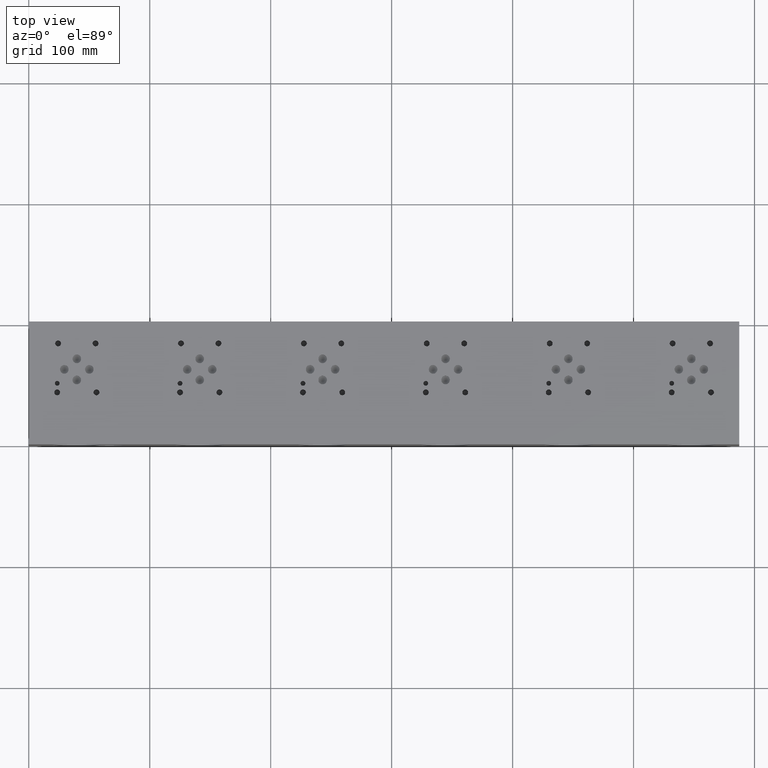
[diagram: clean part render]
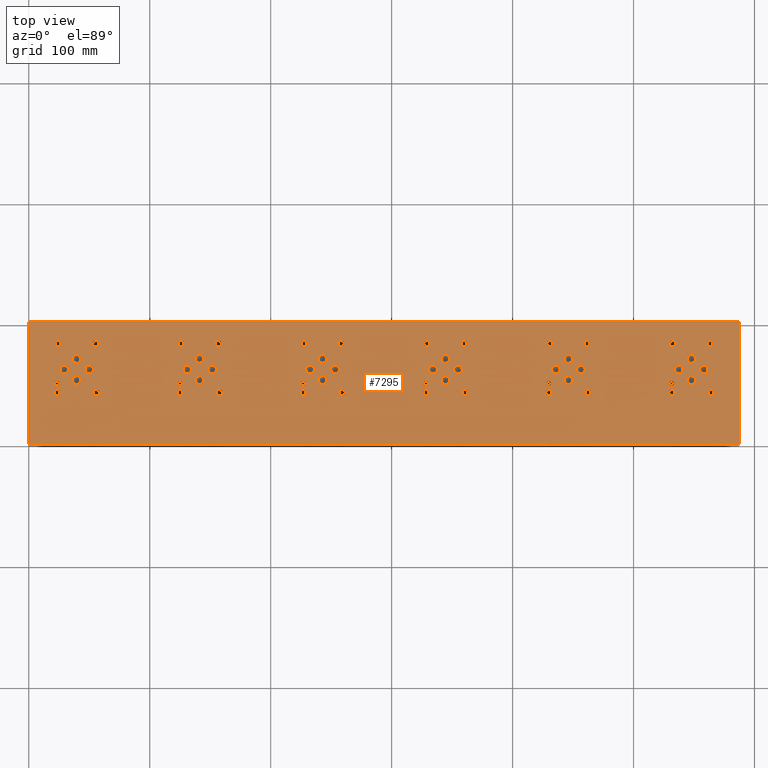
[diagram: same view with one face highlighted and labeled with its STEP entity id]
A machine part, top view. The second image highlights one B-rep face of the part: STEP entity #7295.
In plain terms, the highlighted planar face has unit normal (0, 0, 1).
Its self-contained STEP definition (entity closure, byte-faithful):
#564=CARTESIAN_POINT('',(534.64460000000008,83.337400000000002,101.59999999999999));
#565=VERTEX_POINT('',#564);
#566=CARTESIAN_POINT('',(532.23159999999996,83.337400000000002,101.59999999999999));
#567=DIRECTION('',(0.0,0.0,-1.0));
#568=DIRECTION('',(1.0,0.0,0.0));
#569=AXIS2_PLACEMENT_3D('',#566,#567,#568);
#570=CIRCLE('',#569,2.413000000000025);
#571=EDGE_CURVE('',#565,#565,#570,.T.);
#641=CARTESIAN_POINT('',(565.60720000000015,83.337400000000002,101.59999999999999));
#642=VERTEX_POINT('',#641);
#643=CARTESIAN_POINT('',(563.19420000000014,83.337400000000002,101.59999999999999));
#644=DIRECTION('',(0.0,0.0,-1.0));
#645=DIRECTION('',(1.0,0.0,0.0));
#646=AXIS2_PLACEMENT_3D('',#643,#644,#645);
#647=CIRCLE('',#646,2.413000000000025);
#648=EDGE_CURVE('',#642,#642,#647,.T.);
#718=CARTESIAN_POINT('',(566.39459999999997,42.849800000000002,101.59999999999999));
#719=VERTEX_POINT('',#718);
#720=CARTESIAN_POINT('',(563.98159999999996,42.849800000000002,101.59999999999999));
#721=DIRECTION('',(0.0,0.0,-1.0));
#722=DIRECTION('',(1.0,0.0,0.0));
#723=AXIS2_PLACEMENT_3D('',#720,#721,#722);
#724=CIRCLE('',#723,2.413000000000025);
#725=EDGE_CURVE('',#719,#719,#724,.T.);
#795=CARTESIAN_POINT('',(533.85720000000003,42.849800000000002,101.59999999999999));
#796=VERTEX_POINT('',#795);
#797=CARTESIAN_POINT('',(531.44420000000002,42.849800000000002,101.59999999999999));
#798=DIRECTION('',(0.0,0.0,-1.0));
#799=DIRECTION('',(1.0,0.0,0.0));
#800=AXIS2_PLACEMENT_3D('',#797,#798,#799);
#801=CIRCLE('',#800,2.413000000000025);
#802=EDGE_CURVE('',#796,#796,#801,.T.);
#832=CARTESIAN_POINT('',(533.42540000000008,50.342799999999997,101.59999999999999));
#833=VERTEX_POINT('',#832);
#834=CARTESIAN_POINT('',(531.44420000000002,50.342799999999997,101.59999999999999));
#835=DIRECTION('',(0.0,0.0,-1.0));
#836=DIRECTION('',(1.0,0.0,0.0));
#837=AXIS2_PLACEMENT_3D('',#834,#835,#836);
#838=CIRCLE('',#837,1.98120000000003);
#839=EDGE_CURVE('',#833,#833,#838,.T.);
#869=CARTESIAN_POINT('',(551.26890000000003,53.162200000000006,101.59999999999999));
#870=VERTEX_POINT('',#869);
#871=CARTESIAN_POINT('',(547.7002,53.162200000000006,101.59999999999999));
#872=DIRECTION('',(0.0,0.0,-1.0));
#873=DIRECTION('',(1.0,0.0,0.0));
#874=AXIS2_PLACEMENT_3D('',#871,#872,#873);
#875=CIRCLE('',#874,3.568700000000007);
#876=EDGE_CURVE('',#870,#870,#875,.T.);
#906=CARTESIAN_POINT('',(551.26890000000003,70.6374,101.59999999999999));
#907=VERTEX_POINT('',#906);
#908=CARTESIAN_POINT('',(547.7002,70.6374,101.59999999999999));
#909=DIRECTION('',(0.0,0.0,-1.0));
#910=DIRECTION('',(1.0,0.0,0.0));
#911=AXIS2_PLACEMENT_3D('',#908,#909,#910);
#912=CIRCLE('',#911,3.568700000000007);
#913=EDGE_CURVE('',#907,#907,#912,.T.);
#943=CARTESIAN_POINT('',(561.60670000000005,61.899799999999999,101.59999999999999));
#944=VERTEX_POINT('',#943);
#945=CARTESIAN_POINT('',(558.03800000000001,61.899799999999999,101.59999999999999));
#946=DIRECTION('',(0.0,0.0,-1.0));
#947=DIRECTION('',(1.0,0.0,0.0));
#948=AXIS2_PLACEMENT_3D('',#945,#946,#947);
#949=CIRCLE('',#948,3.568700000000007);
#950=EDGE_CURVE('',#944,#944,#949,.T.);
#980=CARTESIAN_POINT('',(540.95650000000001,61.899799999999999,101.59999999999999));
#981=VERTEX_POINT('',#980);
#982=CARTESIAN_POINT('',(537.38779999999997,61.899799999999999,101.59999999999999));
#983=DIRECTION('',(0.0,0.0,-1.0));
#984=DIRECTION('',(1.0,0.0,0.0));
#985=AXIS2_PLACEMENT_3D('',#982,#983,#984);
#986=CIRCLE('',#985,3.568700000000007);
#987=EDGE_CURVE('',#981,#981,#986,.T.);
#1491=CARTESIAN_POINT('',(433.04460000000006,83.337400000000002,101.59999999999999));
#1492=VERTEX_POINT('',#1491);
#1493=CARTESIAN_POINT('',(430.63160000000005,83.337400000000002,101.59999999999999));
#1494=DIRECTION('',(0.0,0.0,-1.0));
#1495=DIRECTION('',(1.0,0.0,0.0));
#1496=AXIS2_PLACEMENT_3D('',#1493,#1494,#1495);
#1497=CIRCLE('',#1496,2.413000000000025);
#1498=EDGE_CURVE('',#1492,#1492,#1497,.T.);
#1568=CARTESIAN_POINT('',(464.00720000000007,83.337400000000002,101.59999999999999));
#1569=VERTEX_POINT('',#1568);
#1570=CARTESIAN_POINT('',(461.59420000000006,83.337400000000002,101.59999999999999));
#1571=DIRECTION('',(0.0,0.0,-1.0));
#1572=DIRECTION('',(1.0,0.0,0.0));
#1573=AXIS2_PLACEMENT_3D('',#1570,#1571,#1572);
#1574=CIRCLE('',#1573,2.413000000000025);
#1575=EDGE_CURVE('',#1569,#1569,#1574,.T.);
#1645=CARTESIAN_POINT('',(464.79460000000006,42.849800000000002,101.59999999999999));
#1646=VERTEX_POINT('',#1645);
#1647=CARTESIAN_POINT('',(462.38159999999999,42.849800000000002,101.59999999999999));
#1648=DIRECTION('',(0.0,0.0,-1.0));
#1649=DIRECTION('',(1.0,0.0,0.0));
#1650=AXIS2_PLACEMENT_3D('',#1647,#1648,#1649);
#1651=CIRCLE('',#1650,2.413000000000025);
#1652=EDGE_CURVE('',#1646,#1646,#1651,.T.);
#1722=CARTESIAN_POINT('',(432.25720000000001,42.849800000000002,101.59999999999999));
#1723=VERTEX_POINT('',#1722);
#1724=CARTESIAN_POINT('',(429.8442,42.849800000000002,101.59999999999999));
#1725=DIRECTION('',(0.0,0.0,-1.0));
#1726=DIRECTION('',(1.0,0.0,0.0));
#1727=AXIS2_PLACEMENT_3D('',#1724,#1725,#1726);
#1728=CIRCLE('',#1727,2.413000000000025);
#1729=EDGE_CURVE('',#1723,#1723,#1728,.T.);
#1759=CARTESIAN_POINT('',(431.82540000000006,50.342799999999997,101.59999999999999));
#1760=VERTEX_POINT('',#1759);
#1761=CARTESIAN_POINT('',(429.8442,50.342799999999997,101.59999999999999));
#1762=DIRECTION('',(0.0,0.0,-1.0));
#1763=DIRECTION('',(1.0,0.0,0.0));
#1764=AXIS2_PLACEMENT_3D('',#1761,#1762,#1763);
#1765=CIRCLE('',#1764,1.98120000000003);
#1766=EDGE_CURVE('',#1760,#1760,#1765,.T.);
#1796=CARTESIAN_POINT('',(449.66890000000001,53.162200000000006,101.59999999999999));
#1797=VERTEX_POINT('',#1796);
#1798=CARTESIAN_POINT('',(446.10019999999997,53.162200000000006,101.59999999999999));
#1799=DIRECTION('',(0.0,0.0,-1.0));
#1800=DIRECTION('',(1.0,0.0,0.0));
#1801=AXIS2_PLACEMENT_3D('',#1798,#1799,#1800);
#1802=CIRCLE('',#1801,3.568700000000007);
#1803=EDGE_CURVE('',#1797,#1797,#1802,.T.);
#1833=CARTESIAN_POINT('',(449.66890000000001,70.6374,101.59999999999999));
#1834=VERTEX_POINT('',#1833);
#1835=CARTESIAN_POINT('',(446.10019999999997,70.6374,101.59999999999999));
#1836=DIRECTION('',(0.0,0.0,-1.0));
#1837=DIRECTION('',(1.0,0.0,0.0));
#1838=AXIS2_PLACEMENT_3D('',#1835,#1836,#1837);
#1839=CIRCLE('',#1838,3.568700000000007);
#1840=EDGE_CURVE('',#1834,#1834,#1839,.T.);
#1870=CARTESIAN_POINT('',(460.00670000000002,61.899799999999999,101.59999999999999));
#1871=VERTEX_POINT('',#1870);
#1872=CARTESIAN_POINT('',(456.43799999999999,61.899799999999999,101.59999999999999));
#1873=DIRECTION('',(0.0,0.0,-1.0));
#1874=DIRECTION('',(1.0,0.0,0.0));
#1875=AXIS2_PLACEMENT_3D('',#1872,#1873,#1874);
#1876=CIRCLE('',#1875,3.568700000000007);
#1877=EDGE_CURVE('',#1871,#1871,#1876,.T.);
#1907=CARTESIAN_POINT('',(439.35650000000004,61.899799999999999,101.59999999999999));
#1908=VERTEX_POINT('',#1907);
#1909=CARTESIAN_POINT('',(435.7878,61.899799999999999,101.59999999999999));
#1910=DIRECTION('',(0.0,0.0,-1.0));
#1911=DIRECTION('',(1.0,0.0,0.0));
#1912=AXIS2_PLACEMENT_3D('',#1909,#1910,#1911);
#1913=CIRCLE('',#1912,3.568700000000007);
#1914=EDGE_CURVE('',#1908,#1908,#1913,.T.);
#5013=CARTESIAN_POINT('',(331.44460000000009,83.337400000000002,101.59999999999999));
#5014=VERTEX_POINT('',#5013);
#5015=CARTESIAN_POINT('',(329.03160000000008,83.337400000000002,101.59999999999999));
#5016=DIRECTION('',(0.0,0.0,-1.0));
#5017=DIRECTION('',(1.0,0.0,0.0));
#5018=AXIS2_PLACEMENT_3D('',#5015,#5016,#5017);
#5019=CIRCLE('',#5018,2.413000000000025);
#5020=EDGE_CURVE('',#5014,#5014,#5019,.T.);
#5090=CARTESIAN_POINT('',(362.40720000000005,83.337400000000002,101.59999999999999));
#5091=VERTEX_POINT('',#5090);
#5092=CARTESIAN_POINT('',(359.99419999999998,83.337400000000002,101.59999999999999));
#5093=DIRECTION('',(0.0,0.0,-1.0));
#5094=DIRECTION('',(1.0,0.0,0.0));
#5095=AXIS2_PLACEMENT_3D('',#5092,#5093,#5094);
#5096=CIRCLE('',#5095,2.413000000000025);
#5097=EDGE_CURVE('',#5091,#5091,#5096,.T.);
#5167=CARTESIAN_POINT('',(363.19460000000004,42.849800000000002,101.59999999999999));
#5168=VERTEX_POINT('',#5167);
#5169=CARTESIAN_POINT('',(360.78160000000003,42.849800000000002,101.59999999999999));
#5170=DIRECTION('',(0.0,0.0,-1.0));
#5171=DIRECTION('',(1.0,0.0,0.0));
#5172=AXIS2_PLACEMENT_3D('',#5169,#5170,#5171);
#5173=CIRCLE('',#5172,2.413000000000025);
#5174=EDGE_CURVE('',#5168,#5168,#5173,.T.);
#5244=CARTESIAN_POINT('',(330.65719999999999,42.849800000000002,101.59999999999999));
#5245=VERTEX_POINT('',#5244);
#5246=CARTESIAN_POINT('',(328.24419999999998,42.849800000000002,101.59999999999999));
#5247=DIRECTION('',(0.0,0.0,-1.0));
#5248=DIRECTION('',(1.0,0.0,0.0));
#5249=AXIS2_PLACEMENT_3D('',#5246,#5247,#5248);
#5250=CIRCLE('',#5249,2.413000000000025);
#5251=EDGE_CURVE('',#5245,#5245,#5250,.T.);
#5281=CARTESIAN_POINT('',(330.22539999999998,50.342799999999997,101.59999999999999));
#5282=VERTEX_POINT('',#5281);
#5283=CARTESIAN_POINT('',(328.24419999999998,50.342799999999997,101.59999999999999));
#5284=DIRECTION('',(0.0,0.0,-1.0));
#5285=DIRECTION('',(1.0,0.0,0.0));
#5286=AXIS2_PLACEMENT_3D('',#5283,#5284,#5285);
#5287=CIRCLE('',#5286,1.98120000000003);
#5288=EDGE_CURVE('',#5282,#5282,#5287,.T.);
#5318=CARTESIAN_POINT('',(348.06890000000004,53.162200000000006,101.59999999999999));
#5319=VERTEX_POINT('',#5318);
#5320=CARTESIAN_POINT('',(344.50020000000001,53.162200000000006,101.59999999999999));
#5321=DIRECTION('',(0.0,0.0,-1.0));
#5322=DIRECTION('',(1.0,0.0,0.0));
#5323=AXIS2_PLACEMENT_3D('',#5320,#5321,#5322);
#5324=CIRCLE('',#5323,3.568700000000007);
#5325=EDGE_CURVE('',#5319,#5319,#5324,.T.);
#5355=CARTESIAN_POINT('',(348.06890000000004,70.6374,101.59999999999999));
#5356=VERTEX_POINT('',#5355);
#5357=CARTESIAN_POINT('',(344.50020000000001,70.6374,101.59999999999999));
#5358=DIRECTION('',(0.0,0.0,-1.0));
#5359=DIRECTION('',(1.0,0.0,0.0));
#5360=AXIS2_PLACEMENT_3D('',#5357,#5358,#5359);
#5361=CIRCLE('',#5360,3.568700000000007);
#5362=EDGE_CURVE('',#5356,#5356,#5361,.T.);
#5392=CARTESIAN_POINT('',(358.4067,61.899799999999999,101.59999999999999));
#5393=VERTEX_POINT('',#5392);
#5394=CARTESIAN_POINT('',(354.83800000000002,61.899799999999999,101.59999999999999));
#5395=DIRECTION('',(0.0,0.0,-1.0));
#5396=DIRECTION('',(1.0,0.0,0.0));
#5397=AXIS2_PLACEMENT_3D('',#5394,#5395,#5396);
#5398=CIRCLE('',#5397,3.568700000000007);
#5399=EDGE_CURVE('',#5393,#5393,#5398,.T.);
#5429=CARTESIAN_POINT('',(337.75649999999996,61.899799999999999,101.59999999999999));
#5430=VERTEX_POINT('',#5429);
#5431=CARTESIAN_POINT('',(334.18779999999998,61.899799999999999,101.59999999999999));
#5432=DIRECTION('',(0.0,0.0,-1.0));
#5433=DIRECTION('',(1.0,0.0,0.0));
#5434=AXIS2_PLACEMENT_3D('',#5431,#5432,#5433);
#5435=CIRCLE('',#5434,3.568700000000007);
#5436=EDGE_CURVE('',#5430,#5430,#5435,.T.);
#5506=CARTESIAN_POINT('',(229.83190000000002,83.337400000000002,101.59999999999999));
#5507=VERTEX_POINT('',#5506);
#5508=CARTESIAN_POINT('',(227.41890000000001,83.337400000000002,101.59999999999999));
#5509=DIRECTION('',(0.0,0.0,-1.0));
#5510=DIRECTION('',(1.0,0.0,0.0));
#5511=AXIS2_PLACEMENT_3D('',#5508,#5509,#5510);
#5512=CIRCLE('',#5511,2.41299999999999);
#5513=EDGE_CURVE('',#5507,#5507,#5512,.T.);
#5583=CARTESIAN_POINT('',(260.79450000000003,83.337400000000002,101.59999999999999));
#5584=VERTEX_POINT('',#5583);
#5585=CARTESIAN_POINT('',(258.38150000000002,83.337400000000002,101.59999999999999));
#5586=DIRECTION('',(0.0,0.0,-1.0));
#5587=DIRECTION('',(1.0,0.0,0.0));
#5588=AXIS2_PLACEMENT_3D('',#5585,#5586,#5587);
#5589=CIRCLE('',#5588,2.41299999999999);
#5590=EDGE_CURVE('',#5584,#5584,#5589,.T.);
#5660=CARTESIAN_POINT('',(261.58190000000002,42.849800000000002,101.59999999999999));
#5661=VERTEX_POINT('',#5660);
#5662=CARTESIAN_POINT('',(259.16890000000001,42.849800000000002,101.59999999999999));
#5663=DIRECTION('',(0.0,0.0,-1.0));
#5664=DIRECTION('',(1.0,0.0,0.0));
#5665=AXIS2_PLACEMENT_3D('',#5662,#5663,#5664);
#5666=CIRCLE('',#5665,2.41299999999999);
#5667=EDGE_CURVE('',#5661,#5661,#5666,.T.);
#5737=CARTESIAN_POINT('',(229.0445,42.849800000000002,101.59999999999999));
#5738=VERTEX_POINT('',#5737);
#5739=CARTESIAN_POINT('',(226.63150000000002,42.849800000000002,101.59999999999999));
#5740=DIRECTION('',(0.0,0.0,-1.0));
#5741=DIRECTION('',(1.0,0.0,0.0));
#5742=AXIS2_PLACEMENT_3D('',#5739,#5740,#5741);
#5743=CIRCLE('',#5742,2.41299999999999);
#5744=EDGE_CURVE('',#5738,#5738,#5743,.T.);
#5774=CARTESIAN_POINT('',(228.61270000000002,50.342799999999997,101.59999999999999));
#5775=VERTEX_POINT('',#5774);
#5776=CARTESIAN_POINT('',(226.63150000000002,50.342799999999997,101.59999999999999));
#5777=DIRECTION('',(0.0,0.0,-1.0));
#5778=DIRECTION('',(1.0,0.0,0.0));
#5779=AXIS2_PLACEMENT_3D('',#5776,#5777,#5778);
#5780=CIRCLE('',#5779,1.981199999999994);
#5781=EDGE_CURVE('',#5775,#5775,#5780,.T.);
#5811=CARTESIAN_POINT('',(246.45620000000002,53.162200000000006,101.59999999999999));
#5812=VERTEX_POINT('',#5811);
#5813=CARTESIAN_POINT('',(242.88749999999999,53.162200000000006,101.59999999999999));
#5814=DIRECTION('',(0.0,0.0,-1.0));
#5815=DIRECTION('',(1.0,0.0,0.0));
#5816=AXIS2_PLACEMENT_3D('',#5813,#5814,#5815);
#5817=CIRCLE('',#5816,3.568700000000007);
#5818=EDGE_CURVE('',#5812,#5812,#5817,.T.);
#5848=CARTESIAN_POINT('',(246.45620000000002,70.6374,101.59999999999999));
#5849=VERTEX_POINT('',#5848);
#5850=CARTESIAN_POINT('',(242.88749999999999,70.6374,101.59999999999999));
#5851=DIRECTION('',(0.0,0.0,-1.0));
#5852=DIRECTION('',(1.0,0.0,0.0));
#5853=AXIS2_PLACEMENT_3D('',#5850,#5851,#5852);
#5854=CIRCLE('',#5853,3.568700000000007);
#5855=EDGE_CURVE('',#5849,#5849,#5854,.T.);
#5885=CARTESIAN_POINT('',(256.79399999999998,61.899799999999999,101.59999999999999));
#5886=VERTEX_POINT('',#5885);
#5887=CARTESIAN_POINT('',(253.2253,61.899799999999999,101.59999999999999));
#5888=DIRECTION('',(0.0,0.0,-1.0));
#5889=DIRECTION('',(1.0,0.0,0.0));
#5890=AXIS2_PLACEMENT_3D('',#5887,#5888,#5889);
#5891=CIRCLE('',#5890,3.568700000000007);
#5892=EDGE_CURVE('',#5886,#5886,#5891,.T.);
#5922=CARTESIAN_POINT('',(236.1438,61.899799999999999,101.59999999999999));
#5923=VERTEX_POINT('',#5922);
#5924=CARTESIAN_POINT('',(232.57509999999999,61.899799999999999,101.59999999999999));
#5925=DIRECTION('',(0.0,0.0,-1.0));
#5926=DIRECTION('',(1.0,0.0,0.0));
#5927=AXIS2_PLACEMENT_3D('',#5924,#5925,#5926);
#5928=CIRCLE('',#5927,3.568700000000007);
#5929=EDGE_CURVE('',#5923,#5923,#5928,.T.);
#5999=CARTESIAN_POINT('',(128.23190000000002,83.337400000000002,101.59999999999999));
#6000=VERTEX_POINT('',#5999);
#6001=CARTESIAN_POINT('',(125.81890000000001,83.337400000000002,101.59999999999999));
#6002=DIRECTION('',(0.0,0.0,-1.0));
#6003=DIRECTION('',(1.0,0.0,0.0));
#6004=AXIS2_PLACEMENT_3D('',#6001,#6002,#6003);
#6005=CIRCLE('',#6004,2.413000000000007);
#6006=EDGE_CURVE('',#6000,#6000,#6005,.T.);
#6076=CARTESIAN_POINT('',(159.19450000000001,83.337400000000002,101.59999999999999));
#6077=VERTEX_POINT('',#6076);
#6078=CARTESIAN_POINT('',(156.78149999999999,83.337400000000002,101.59999999999999));
#6079=DIRECTION('',(0.0,0.0,-1.0));
#6080=DIRECTION('',(1.0,0.0,0.0));
#6081=AXIS2_PLACEMENT_3D('',#6078,#6079,#6080);
#6082=CIRCLE('',#6081,2.413000000000007);
#6083=EDGE_CURVE('',#6077,#6077,#6082,.T.);
#6153=CARTESIAN_POINT('',(159.98190000000002,42.849800000000002,101.59999999999999));
#6154=VERTEX_POINT('',#6153);
#6155=CARTESIAN_POINT('',(157.56890000000001,42.849800000000002,101.59999999999999));
#6156=DIRECTION('',(0.0,0.0,-1.0));
#6157=DIRECTION('',(1.0,0.0,0.0));
#6158=AXIS2_PLACEMENT_3D('',#6155,#6156,#6157);
#6159=CIRCLE('',#6158,2.413000000000007);
#6160=EDGE_CURVE('',#6154,#6154,#6159,.T.);
#6230=CARTESIAN_POINT('',(127.44450000000001,42.849800000000002,101.59999999999999));
#6231=VERTEX_POINT('',#6230);
#6232=CARTESIAN_POINT('',(125.03149999999999,42.849800000000002,101.59999999999999));
#6233=DIRECTION('',(0.0,0.0,-1.0));
#6234=DIRECTION('',(1.0,0.0,0.0));
#6235=AXIS2_PLACEMENT_3D('',#6232,#6233,#6234);
#6236=CIRCLE('',#6235,2.413000000000007);
#6237=EDGE_CURVE('',#6231,#6231,#6236,.T.);
#6267=CARTESIAN_POINT('',(127.0127,50.342799999999997,101.59999999999999));
#6268=VERTEX_POINT('',#6267);
#6269=CARTESIAN_POINT('',(125.03149999999999,50.342799999999997,101.59999999999999));
#6270=DIRECTION('',(0.0,0.0,-1.0));
#6271=DIRECTION('',(1.0,0.0,0.0));
#6272=AXIS2_PLACEMENT_3D('',#6269,#6270,#6271);
#6273=CIRCLE('',#6272,1.981199999999994);
#6274=EDGE_CURVE('',#6268,#6268,#6273,.T.);
#6304=CARTESIAN_POINT('',(144.8562,53.162200000000006,101.59999999999999));
#6305=VERTEX_POINT('',#6304);
#6306=CARTESIAN_POINT('',(141.28749999999999,53.162200000000006,101.59999999999999));
#6307=DIRECTION('',(0.0,0.0,-1.0));
#6308=DIRECTION('',(1.0,0.0,0.0));
#6309=AXIS2_PLACEMENT_3D('',#6306,#6307,#6308);
#6310=CIRCLE('',#6309,3.568700000000007);
#6311=EDGE_CURVE('',#6305,#6305,#6310,.T.);
#6341=CARTESIAN_POINT('',(144.8562,70.6374,101.59999999999999));
#6342=VERTEX_POINT('',#6341);
#6343=CARTESIAN_POINT('',(141.28749999999999,70.6374,101.59999999999999));
#6344=DIRECTION('',(0.0,0.0,-1.0));
#6345=DIRECTION('',(1.0,0.0,0.0));
#6346=AXIS2_PLACEMENT_3D('',#6343,#6344,#6345);
#6347=CIRCLE('',#6346,3.568700000000007);
#6348=EDGE_CURVE('',#6342,#6342,#6347,.T.);
#6378=CARTESIAN_POINT('',(155.19400000000002,61.899799999999999,101.59999999999999));
#6379=VERTEX_POINT('',#6378);
#6380=CARTESIAN_POINT('',(151.62530000000001,61.899799999999999,101.59999999999999));
#6381=DIRECTION('',(0.0,0.0,-1.0));
#6382=DIRECTION('',(1.0,0.0,0.0));
#6383=AXIS2_PLACEMENT_3D('',#6380,#6381,#6382);
#6384=CIRCLE('',#6383,3.568700000000007);
#6385=EDGE_CURVE('',#6379,#6379,#6384,.T.);
#6415=CARTESIAN_POINT('',(134.5438,61.899799999999999,101.59999999999999));
#6416=VERTEX_POINT('',#6415);
#6417=CARTESIAN_POINT('',(130.9751,61.899799999999999,101.59999999999999));
#6418=DIRECTION('',(0.0,0.0,-1.0));
#6419=DIRECTION('',(1.0,0.0,0.0));
#6420=AXIS2_PLACEMENT_3D('',#6417,#6418,#6419);
#6421=CIRCLE('',#6420,3.568700000000007);
#6422=EDGE_CURVE('',#6416,#6416,#6421,.T.);
#6492=CARTESIAN_POINT('',(26.619199999999999,83.337400000000002,101.59999999999999));
#6493=VERTEX_POINT('',#6492);
#6494=CARTESIAN_POINT('',(24.206199999999999,83.337400000000002,101.59999999999999));
#6495=DIRECTION('',(0.0,0.0,-1.0));
#6496=DIRECTION('',(1.0,0.0,0.0));
#6497=AXIS2_PLACEMENT_3D('',#6494,#6495,#6496);
#6498=CIRCLE('',#6497,2.412999999999999);
#6499=EDGE_CURVE('',#6493,#6493,#6498,.T.);
#6569=CARTESIAN_POINT('',(57.581800000000001,83.337400000000002,101.59999999999999));
#6570=VERTEX_POINT('',#6569);
#6571=CARTESIAN_POINT('',(55.168800000000005,83.337400000000002,101.59999999999999));
#6572=DIRECTION('',(0.0,0.0,-1.0));
#6573=DIRECTION('',(1.0,0.0,0.0));
#6574=AXIS2_PLACEMENT_3D('',#6571,#6572,#6573);
#6575=CIRCLE('',#6574,2.412999999999999);
#6576=EDGE_CURVE('',#6570,#6570,#6575,.T.);
#6646=CARTESIAN_POINT('',(58.369199999999999,42.849800000000002,101.59999999999999));
#6647=VERTEX_POINT('',#6646);
#6648=CARTESIAN_POINT('',(55.956200000000003,42.849800000000002,101.59999999999999));
#6649=DIRECTION('',(0.0,0.0,-1.0));
#6650=DIRECTION('',(1.0,0.0,0.0));
#6651=AXIS2_PLACEMENT_3D('',#6648,#6649,#6650);
#6652=CIRCLE('',#6651,2.412999999999999);
#6653=EDGE_CURVE('',#6647,#6647,#6652,.T.);
#6723=CARTESIAN_POINT('',(25.831800000000001,42.849800000000002,101.59999999999999));
#6724=VERTEX_POINT('',#6723);
#6725=CARTESIAN_POINT('',(23.418800000000001,42.849800000000002,101.59999999999999));
#6726=DIRECTION('',(0.0,0.0,-1.0));
#6727=DIRECTION('',(1.0,0.0,0.0));
#6728=AXIS2_PLACEMENT_3D('',#6725,#6726,#6727);
#6729=CIRCLE('',#6728,2.412999999999999);
#6730=EDGE_CURVE('',#6724,#6724,#6729,.T.);
#6760=CARTESIAN_POINT('',(25.399999999999999,50.342799999999997,101.59999999999999));
#6761=VERTEX_POINT('',#6760);
#6762=CARTESIAN_POINT('',(23.418800000000001,50.342799999999997,101.59999999999999));
#6763=DIRECTION('',(0.0,0.0,-1.0));
#6764=DIRECTION('',(1.0,0.0,0.0));
#6765=AXIS2_PLACEMENT_3D('',#6762,#6763,#6764);
#6766=CIRCLE('',#6765,1.981199999999999);
#6767=EDGE_CURVE('',#6761,#6761,#6766,.T.);
#6797=CARTESIAN_POINT('',(43.243499999999997,53.162200000000006,101.59999999999999));
#6798=VERTEX_POINT('',#6797);
#6799=CARTESIAN_POINT('',(39.674800000000005,53.162200000000006,101.59999999999999));
#6800=DIRECTION('',(0.0,0.0,-1.0));
#6801=DIRECTION('',(1.0,0.0,0.0));
#6802=AXIS2_PLACEMENT_3D('',#6799,#6800,#6801);
#6803=CIRCLE('',#6802,3.568699999999998);
#6804=EDGE_CURVE('',#6798,#6798,#6803,.T.);
#6834=CARTESIAN_POINT('',(43.243499999999997,70.6374,101.59999999999999));
#6835=VERTEX_POINT('',#6834);
#6836=CARTESIAN_POINT('',(39.674800000000005,70.6374,101.59999999999999));
#6837=DIRECTION('',(0.0,0.0,-1.0));
#6838=DIRECTION('',(1.0,0.0,0.0));
#6839=AXIS2_PLACEMENT_3D('',#6836,#6837,#6838);
#6840=CIRCLE('',#6839,3.568699999999998);
#6841=EDGE_CURVE('',#6835,#6835,#6840,.T.);
#6871=CARTESIAN_POINT('',(53.581299999999999,61.899799999999999,101.59999999999999));
#6872=VERTEX_POINT('',#6871);
#6873=CARTESIAN_POINT('',(50.012600000000006,61.899799999999999,101.59999999999999));
#6874=DIRECTION('',(0.0,0.0,-1.0));
#6875=DIRECTION('',(1.0,0.0,0.0));
#6876=AXIS2_PLACEMENT_3D('',#6873,#6874,#6875);
#6877=CIRCLE('',#6876,3.568699999999998);
#6878=EDGE_CURVE('',#6872,#6872,#6877,.T.);
#6908=CARTESIAN_POINT('',(32.931100000000001,61.899799999999999,101.59999999999999));
#6909=VERTEX_POINT('',#6908);
#6910=CARTESIAN_POINT('',(29.362400000000001,61.899799999999999,101.59999999999999));
#6911=DIRECTION('',(0.0,0.0,-1.0));
#6912=DIRECTION('',(1.0,0.0,0.0));
#6913=AXIS2_PLACEMENT_3D('',#6910,#6911,#6912);
#6914=CIRCLE('',#6913,3.568700000000002);
#6915=EDGE_CURVE('',#6909,#6909,#6914,.T.);
#6928=CARTESIAN_POINT('',(0.0,0.0,101.59999999999999));
#6929=VERTEX_POINT('',#6928);
#6930=CARTESIAN_POINT('',(0.0,101.59999999999999,101.59999999999999));
#6931=VERTEX_POINT('',#6930);
#6932=CARTESIAN_POINT('',(0.0,0.0,101.59999999999999));
#6933=DIRECTION('',(0.0,1.0,0.0));
#6934=VECTOR('',#6933,101.59999999999999);
#6935=LINE('',#6932,#6934);
#6936=EDGE_CURVE('',#6929,#6931,#6935,.T.);
#6980=CARTESIAN_POINT('',(587.375,101.59999999999999,101.59999999999999));
#6981=VERTEX_POINT('',#6980);
#6982=CARTESIAN_POINT('',(0.0,101.59999999999999,101.59999999999999));
#6983=DIRECTION('',(1.0,0.0,0.0));
#6984=VECTOR('',#6983,587.375);
#6985=LINE('',#6982,#6984);
#6986=EDGE_CURVE('',#6931,#6981,#6985,.T.);
#7011=CARTESIAN_POINT('',(587.375,0.0,101.59999999999999));
#7012=VERTEX_POINT('',#7011);
#7013=CARTESIAN_POINT('',(587.375,101.59999999999999,101.59999999999999));
#7014=DIRECTION('',(0.0,-1.0,0.0));
#7015=VECTOR('',#7014,101.59999999999999);
#7016=LINE('',#7013,#7015);
#7017=EDGE_CURVE('',#6981,#7012,#7016,.T.);
#7054=CARTESIAN_POINT('',(587.375,0.0,101.59999999999999));
#7055=DIRECTION('',(-1.0,0.0,0.0));
#7056=VECTOR('',#7055,587.375);
#7057=LINE('',#7054,#7056);
#7058=EDGE_CURVE('',#7012,#6929,#7057,.T.);
#7122=CARTESIAN_POINT('',(293.68750000000006,50.799999999999983,101.59999999999999));
#7123=DIRECTION('',(0.0,0.0,1.0));
#7124=DIRECTION('',(1.0,0.0,0.0));
#7125=AXIS2_PLACEMENT_3D('',#7122,#7123,#7124);
#7126=PLANE('',#7125);
#7127=ORIENTED_EDGE('',*,*,#6936,.F.);
#7128=ORIENTED_EDGE('',*,*,#7058,.F.);
#7129=ORIENTED_EDGE('',*,*,#7017,.F.);
#7130=ORIENTED_EDGE('',*,*,#6986,.F.);
#7131=EDGE_LOOP('',(#7127,#7128,#7129,#7130));
#7132=FACE_OUTER_BOUND('',#7131,.T.);
#7133=ORIENTED_EDGE('',*,*,#571,.T.);
#7134=EDGE_LOOP('',(#7133));
#7135=FACE_BOUND('',#7134,.T.);
#7136=ORIENTED_EDGE('',*,*,#648,.T.);
#7137=EDGE_LOOP('',(#7136));
#7138=FACE_BOUND('',#7137,.T.);
#7139=ORIENTED_EDGE('',*,*,#725,.T.);
#7140=EDGE_LOOP('',(#7139));
#7141=FACE_BOUND('',#7140,.T.);
#7142=ORIENTED_EDGE('',*,*,#802,.T.);
#7143=EDGE_LOOP('',(#7142));
#7144=FACE_BOUND('',#7143,.T.);
#7145=ORIENTED_EDGE('',*,*,#839,.T.);
#7146=EDGE_LOOP('',(#7145));
#7147=FACE_BOUND('',#7146,.T.);
#7148=ORIENTED_EDGE('',*,*,#876,.T.);
#7149=EDGE_LOOP('',(#7148));
#7150=FACE_BOUND('',#7149,.T.);
#7151=ORIENTED_EDGE('',*,*,#913,.T.);
#7152=EDGE_LOOP('',(#7151));
#7153=FACE_BOUND('',#7152,.T.);
#7154=ORIENTED_EDGE('',*,*,#950,.T.);
#7155=EDGE_LOOP('',(#7154));
#7156=FACE_BOUND('',#7155,.T.);
#7157=ORIENTED_EDGE('',*,*,#987,.T.);
#7158=EDGE_LOOP('',(#7157));
#7159=FACE_BOUND('',#7158,.T.);
#7160=ORIENTED_EDGE('',*,*,#1498,.T.);
#7161=EDGE_LOOP('',(#7160));
#7162=FACE_BOUND('',#7161,.T.);
#7163=ORIENTED_EDGE('',*,*,#1575,.T.);
#7164=EDGE_LOOP('',(#7163));
#7165=FACE_BOUND('',#7164,.T.);
#7166=ORIENTED_EDGE('',*,*,#1652,.T.);
#7167=EDGE_LOOP('',(#7166));
#7168=FACE_BOUND('',#7167,.T.);
#7169=ORIENTED_EDGE('',*,*,#1729,.T.);
#7170=EDGE_LOOP('',(#7169));
#7171=FACE_BOUND('',#7170,.T.);
#7172=ORIENTED_EDGE('',*,*,#1766,.T.);
#7173=EDGE_LOOP('',(#7172));
#7174=FACE_BOUND('',#7173,.T.);
#7175=ORIENTED_EDGE('',*,*,#1803,.T.);
#7176=EDGE_LOOP('',(#7175));
#7177=FACE_BOUND('',#7176,.T.);
#7178=ORIENTED_EDGE('',*,*,#1840,.T.);
#7179=EDGE_LOOP('',(#7178));
#7180=FACE_BOUND('',#7179,.T.);
#7181=ORIENTED_EDGE('',*,*,#1877,.T.);
#7182=EDGE_LOOP('',(#7181));
#7183=FACE_BOUND('',#7182,.T.);
#7184=ORIENTED_EDGE('',*,*,#1914,.T.);
#7185=EDGE_LOOP('',(#7184));
#7186=FACE_BOUND('',#7185,.T.);
#7187=ORIENTED_EDGE('',*,*,#5020,.T.);
#7188=EDGE_LOOP('',(#7187));
#7189=FACE_BOUND('',#7188,.T.);
#7190=ORIENTED_EDGE('',*,*,#5097,.T.);
#7191=EDGE_LOOP('',(#7190));
#7192=FACE_BOUND('',#7191,.T.);
#7193=ORIENTED_EDGE('',*,*,#5174,.T.);
#7194=EDGE_LOOP('',(#7193));
#7195=FACE_BOUND('',#7194,.T.);
#7196=ORIENTED_EDGE('',*,*,#5251,.T.);
#7197=EDGE_LOOP('',(#7196));
#7198=FACE_BOUND('',#7197,.T.);
#7199=ORIENTED_EDGE('',*,*,#5288,.T.);
#7200=EDGE_LOOP('',(#7199));
#7201=FACE_BOUND('',#7200,.T.);
#7202=ORIENTED_EDGE('',*,*,#5325,.T.);
#7203=EDGE_LOOP('',(#7202));
#7204=FACE_BOUND('',#7203,.T.);
#7205=ORIENTED_EDGE('',*,*,#5362,.T.);
#7206=EDGE_LOOP('',(#7205));
#7207=FACE_BOUND('',#7206,.T.);
#7208=ORIENTED_EDGE('',*,*,#5399,.T.);
#7209=EDGE_LOOP('',(#7208));
#7210=FACE_BOUND('',#7209,.T.);
#7211=ORIENTED_EDGE('',*,*,#5436,.T.);
#7212=EDGE_LOOP('',(#7211));
#7213=FACE_BOUND('',#7212,.T.);
#7214=ORIENTED_EDGE('',*,*,#5513,.T.);
#7215=EDGE_LOOP('',(#7214));
#7216=FACE_BOUND('',#7215,.T.);
#7217=ORIENTED_EDGE('',*,*,#5590,.T.);
#7218=EDGE_LOOP('',(#7217));
#7219=FACE_BOUND('',#7218,.T.);
#7220=ORIENTED_EDGE('',*,*,#5667,.T.);
#7221=EDGE_LOOP('',(#7220));
#7222=FACE_BOUND('',#7221,.T.);
#7223=ORIENTED_EDGE('',*,*,#5744,.T.);
#7224=EDGE_LOOP('',(#7223));
#7225=FACE_BOUND('',#7224,.T.);
#7226=ORIENTED_EDGE('',*,*,#5781,.T.);
#7227=EDGE_LOOP('',(#7226));
#7228=FACE_BOUND('',#7227,.T.);
#7229=ORIENTED_EDGE('',*,*,#5818,.T.);
#7230=EDGE_LOOP('',(#7229));
#7231=FACE_BOUND('',#7230,.T.);
#7232=ORIENTED_EDGE('',*,*,#5855,.T.);
#7233=EDGE_LOOP('',(#7232));
#7234=FACE_BOUND('',#7233,.T.);
#7235=ORIENTED_EDGE('',*,*,#5892,.T.);
#7236=EDGE_LOOP('',(#7235));
#7237=FACE_BOUND('',#7236,.T.);
#7238=ORIENTED_EDGE('',*,*,#5929,.T.);
#7239=EDGE_LOOP('',(#7238));
#7240=FACE_BOUND('',#7239,.T.);
#7241=ORIENTED_EDGE('',*,*,#6006,.T.);
#7242=EDGE_LOOP('',(#7241));
#7243=FACE_BOUND('',#7242,.T.);
#7244=ORIENTED_EDGE('',*,*,#6083,.T.);
#7245=EDGE_LOOP('',(#7244));
#7246=FACE_BOUND('',#7245,.T.);
#7247=ORIENTED_EDGE('',*,*,#6160,.T.);
#7248=EDGE_LOOP('',(#7247));
#7249=FACE_BOUND('',#7248,.T.);
#7250=ORIENTED_EDGE('',*,*,#6237,.T.);
#7251=EDGE_LOOP('',(#7250));
#7252=FACE_BOUND('',#7251,.T.);
#7253=ORIENTED_EDGE('',*,*,#6274,.T.);
#7254=EDGE_LOOP('',(#7253));
#7255=FACE_BOUND('',#7254,.T.);
#7256=ORIENTED_EDGE('',*,*,#6311,.T.);
#7257=EDGE_LOOP('',(#7256));
#7258=FACE_BOUND('',#7257,.T.);
#7259=ORIENTED_EDGE('',*,*,#6348,.T.);
#7260=EDGE_LOOP('',(#7259));
#7261=FACE_BOUND('',#7260,.T.);
#7262=ORIENTED_EDGE('',*,*,#6385,.T.);
#7263=EDGE_LOOP('',(#7262));
#7264=FACE_BOUND('',#7263,.T.);
#7265=ORIENTED_EDGE('',*,*,#6422,.T.);
#7266=EDGE_LOOP('',(#7265));
#7267=FACE_BOUND('',#7266,.T.);
#7268=ORIENTED_EDGE('',*,*,#6499,.T.);
#7269=EDGE_LOOP('',(#7268));
#7270=FACE_BOUND('',#7269,.T.);
#7271=ORIENTED_EDGE('',*,*,#6576,.T.);
#7272=EDGE_LOOP('',(#7271));
#7273=FACE_BOUND('',#7272,.T.);
#7274=ORIENTED_EDGE('',*,*,#6653,.T.);
#7275=EDGE_LOOP('',(#7274));
#7276=FACE_BOUND('',#7275,.T.);
#7277=ORIENTED_EDGE('',*,*,#6730,.T.);
#7278=EDGE_LOOP('',(#7277));
#7279=FACE_BOUND('',#7278,.T.);
#7280=ORIENTED_EDGE('',*,*,#6767,.T.);
#7281=EDGE_LOOP('',(#7280));
#7282=FACE_BOUND('',#7281,.T.);
#7283=ORIENTED_EDGE('',*,*,#6804,.T.);
#7284=EDGE_LOOP('',(#7283));
#7285=FACE_BOUND('',#7284,.T.);
#7286=ORIENTED_EDGE('',*,*,#6841,.T.);
#7287=EDGE_LOOP('',(#7286));
#7288=FACE_BOUND('',#7287,.T.);
#7289=ORIENTED_EDGE('',*,*,#6878,.T.);
#7290=EDGE_LOOP('',(#7289));
#7291=FACE_BOUND('',#7290,.T.);
#7292=ORIENTED_EDGE('',*,*,#6915,.T.);
#7293=EDGE_LOOP('',(#7292));
#7294=FACE_BOUND('',#7293,.T.);
#7295=ADVANCED_FACE('',(#7132,#7135,#7138,#7141,#7144,#7147,#7150,#7153,#7156,#7159,#7162,#7165,#7168,#7171,#7174,#7177,#7180,#7183,#7186,#7189,#7192,#7195,#7198,#7201,#7204,#7207,#7210,#7213,#7216,#7219,#7222,#7225,#7228,#7231,#7234,#7237,#7240,#7243,#7246,#7249,#7252,#7255,#7258,#7261,#7264,#7267,#7270,#7273,#7276,#7279,#7282,#7285,#7288,#7291,#7294),#7126,.T.);